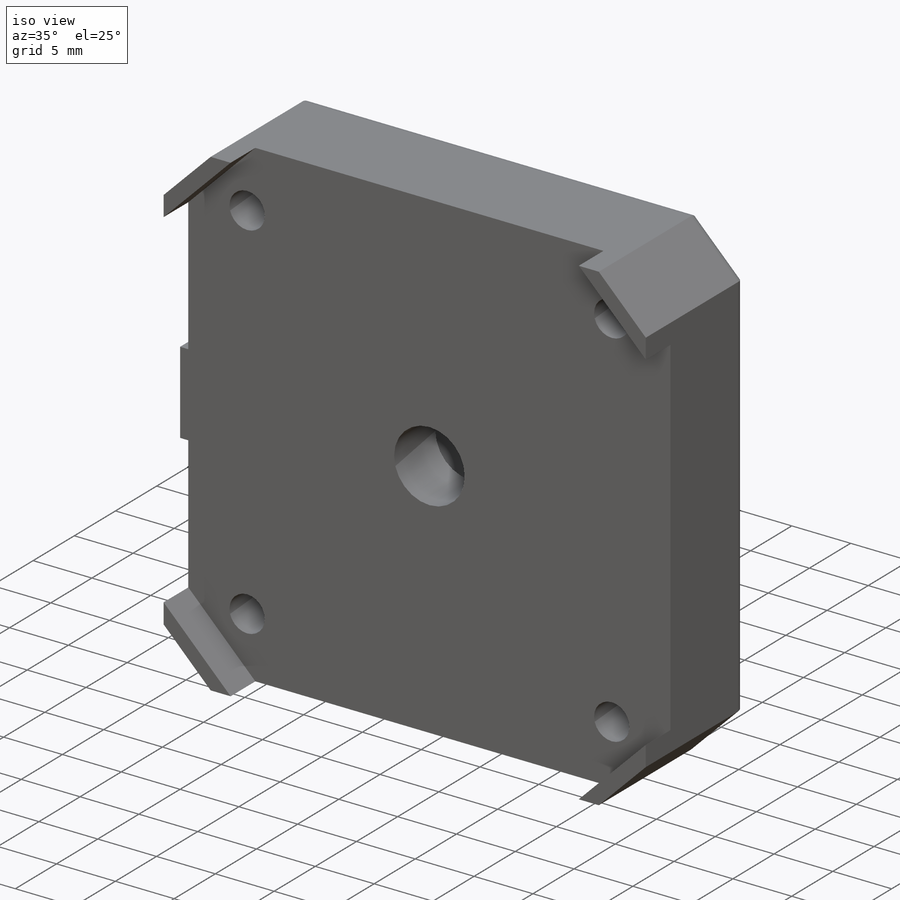
[diagram: iso view]
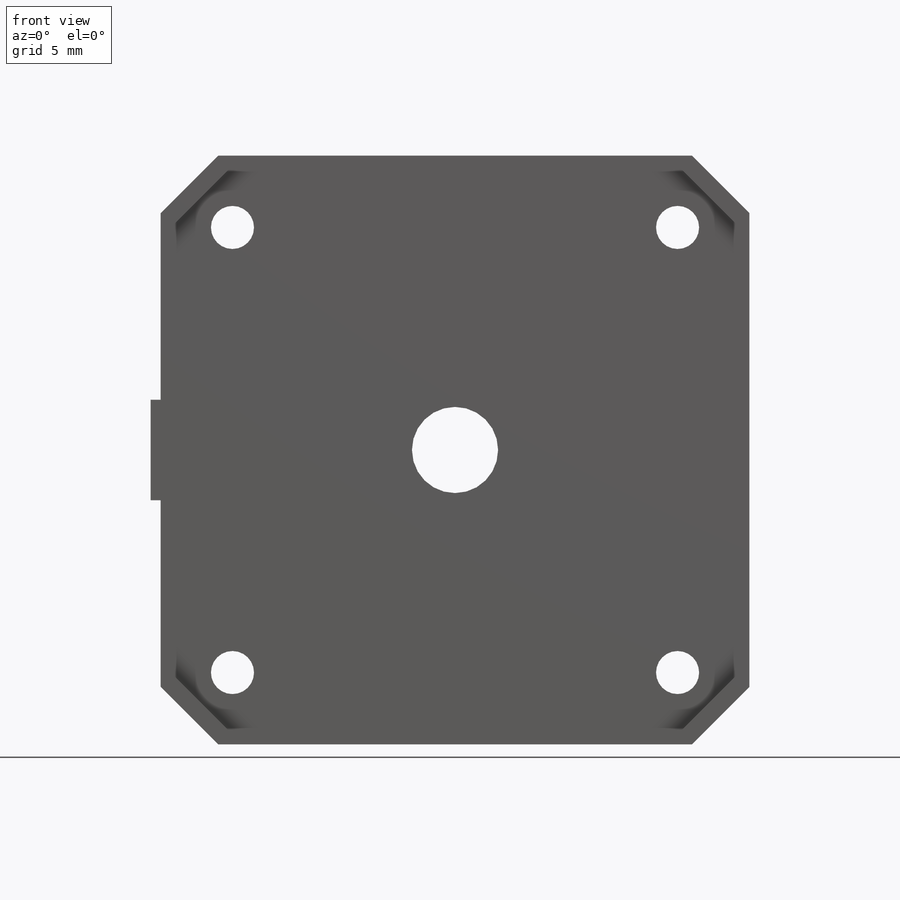
[diagram: front view]
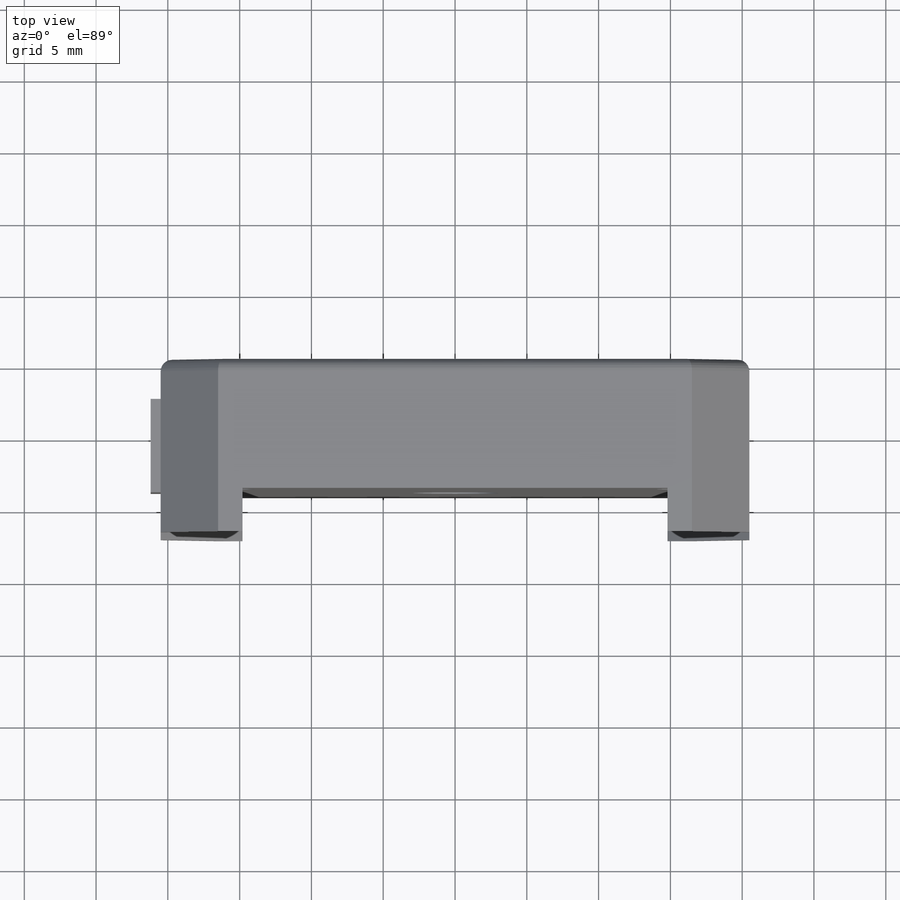
[diagram: top view]
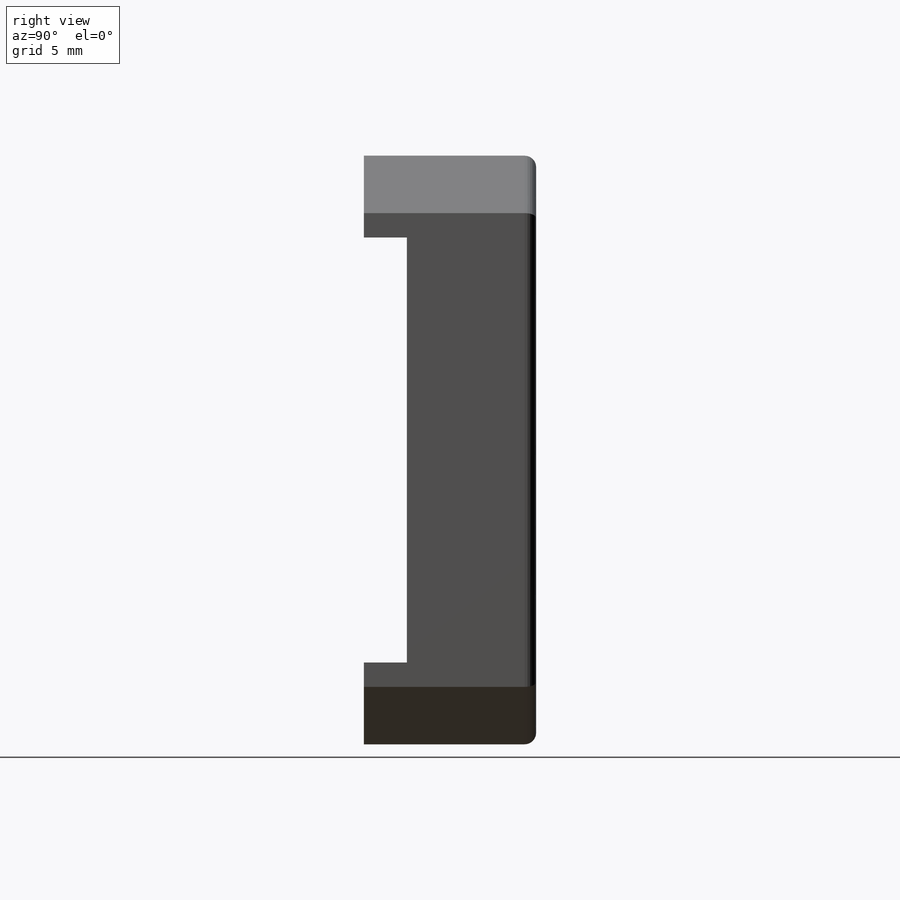
[diagram: right view]
SOLIDWORKS PART (.sldprt)
format: sldprt  version: not decoded by parser v0  size: 372,736 bytes
history: native  units: mm
features: sketch x8, cut_extrude x6, plane x3, extrude x2, fillet x2, material x1 (+9 scaffold rows collapsed)
feature tree (31):
  scaffold x9  (default folders/planes/origin — collapsed)
  material  "Acero aleado"
  plane  "Alzado"
  plane  "Planta"
  plane  "Vista lateral"
  sketch  "Croquis1"  dims[D1=41.0mm D2=41.0mm]
  extrude  "Saliente-Extruir4"  Depth=12mm
  sketch  "Croquis4"  dims[D1=42.3mm D2=42.3mm]
  cut_extrude  "Cortar-Extruir1"  Depth=3mm
  sketch  "Croquis5"  dims[D1=3.0mm D2=15.5mm D3=15.5mm D5=31.0mm D6=15.5mm D4=4.0]
  cut_extrude  "Cortar-Extruir2"  Depth=22mm
  sketch  "Croquis6"  dims[D1=6.0mm D2=9.0mm]
  fillet  "Redondeo1"  Radius=0.8mm
  sketch  "Croquis7"  dims[D1=6.2mm D3=15.5mm D4=15.5mm D2=4.0]
  cut_extrude  "Cortar-Extruir4"  Depth=3mm
  fillet  "Redondeo2"  Radius=0.2mm
  sketch  "Sketch2"  dims[D1=7.0mm D2=6.5mm D3=0.0mm D4=17.0mm D5=6.5mm]
  extrude  "Boss-Extrude1"  Depth=0.7mm
  sketch  "Sketch3"  dims[D1=5.0mm D2=4.5mm D3=1.0mm]
  cut_extrude  "Cut-Extrude3"  Depth=10mm
  cut_extrude  "Cut-Extrude4"  Depth=10mm
  sketch  "Sketch4"  dims[D1=9.0mm]
  cut_extrude  "Cut-Extrude5"  Depth=4mm
decode coverage: 18 of 18 modeling features carry decoded parameters
note: suppression state not decoded; provenance and decode notes live in map.json
